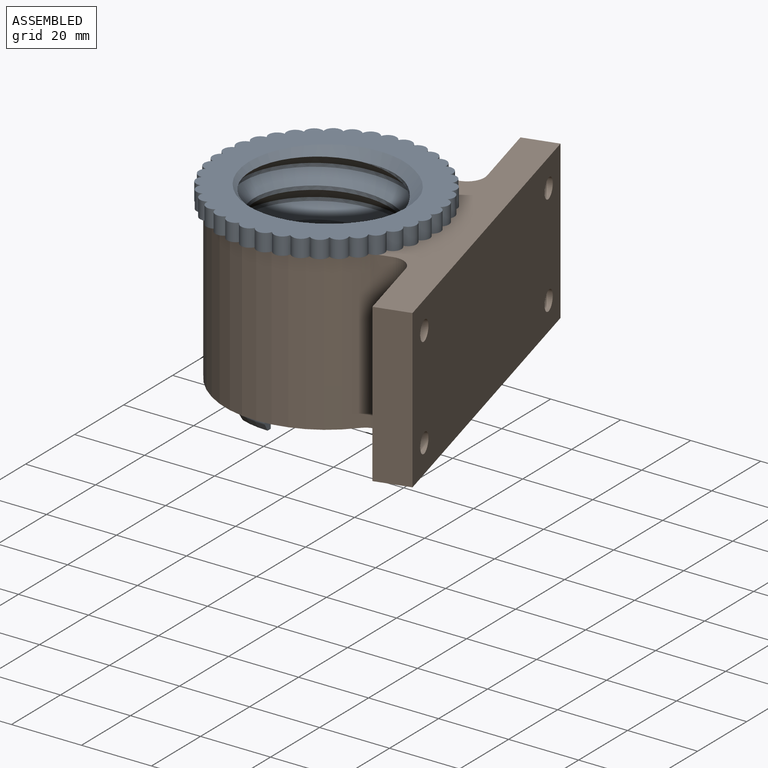
[diagram: assembled view]
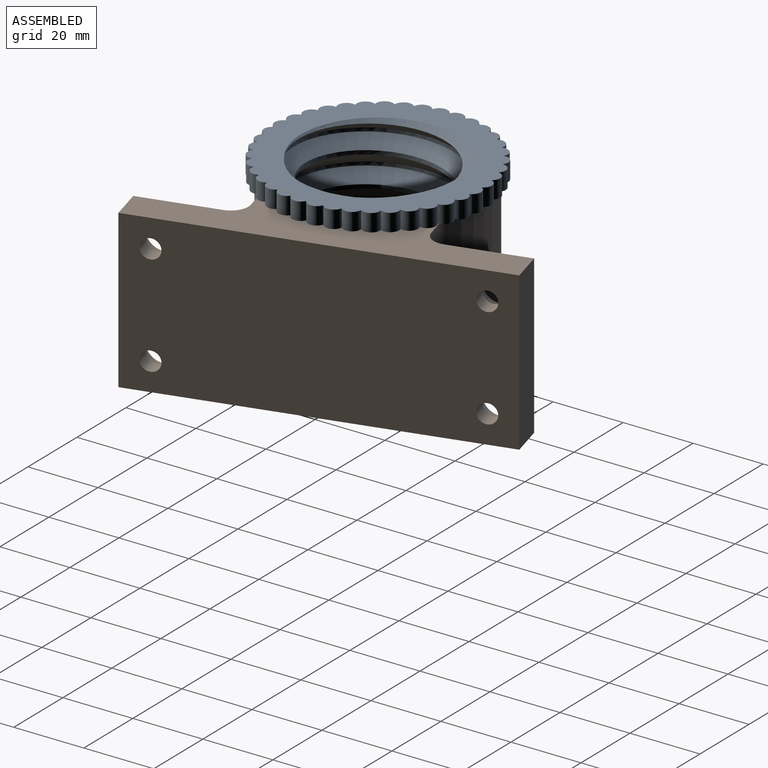
[diagram: assembled view, second angle]
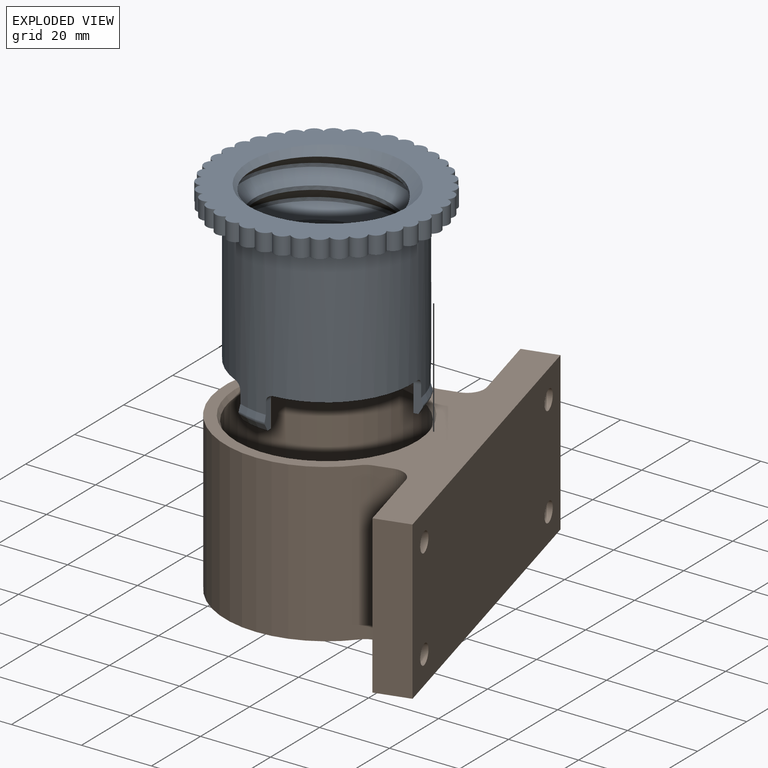
[diagram: exploded view]
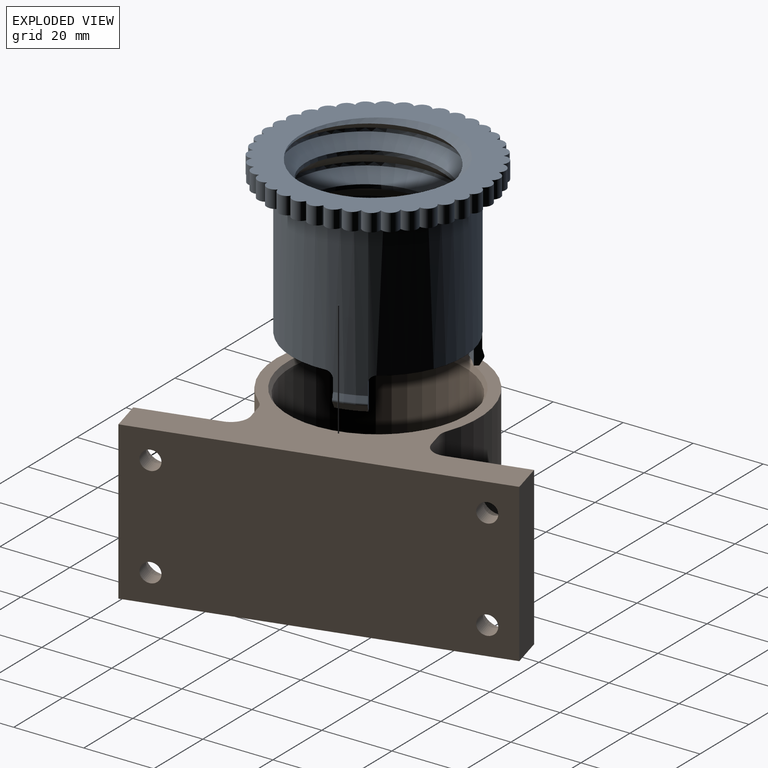
[diagram: exploded view, second angle]
ASSEMBLY  parts=2 mates=2
PART A: 76 faces, bbox 62.3x62.3x59 mm
  f0: cone r=24.97mm half-angle=15deg, axis (0,0,-1), area 15.5mm2, adj f1,f5,f6,f7
  f1: cylinder r=24.5mm len=49mm, axis (0,0,1), area 6305.5mm2, adj f0,f6,f7,f8,f10,f56,f61,f62
  f2: cylinder r=22.5mm len=10.15mm, axis (0,0,1), area 79.7mm2, adj f3,f6,f7,f8,f70,f71
  f3: plane 7.6x5.13mm, normal (0,0,-1), area 10.5mm2, adj f2,f4,f6,f7
  f4: cone r=23.8mm half-angle=30deg, axis (0,0,1), area 18.1mm2, adj f3,f5,f6,f7
  f5: torus R=24mm, axis (0,0,1), area 6.8mm2, adj f0,f4,f6,f7
  f6: plane 7.64x1.92mm, normal (0.77,-0.64,0), area 15.7mm2, adj f0,f1,f2,f3,f4,f5,f70
  f7: plane 7.64x2.35mm, normal (-0.94,0.34,0), area 15.7mm2, adj f0,f1,f2,f3,f4,f5,f71
  f8: plane 49.13x48.33mm, normal (0,0,-1), area 404.2mm2, adj f1,f2,f9,f13,f14,f15,f57,f64
  f9: cylinder r=19.5mm len=42.5mm, axis (0,0,1), area 627.2mm2, adj f8,f12,f13,f15
  f10: plane 62x62mm, normal (0,0,-1), area 1050.9mm2, adj f1,f16,f17,f18,f19,f20,f21,f22
  f11: plane 62.27x62.27mm, normal (0,0,1), area 1392mm2, adj f12,f13,f14,f15,f16,f17,f18,f19
  f12: cone r=19.5mm half-angle=45deg, axis (0,0,1), area 192.6mm2, adj f9,f11,f13,f15
  f13: bspline ~52.99x45.95mm, area 3138.5mm2, adj f8,f9,f11,f12,f14
  f14: bspline ~48.3x46mm, area 731mm2, adj f8,f11,f13,f15
  f15: bspline ~50.79x46mm, area 3131.8mm2, adj f8,f9,f11,f12,f14
  f16: cylinder r=2.48mm len=5mm, axis (0,0,1), area 29.9mm2, adj f10,f11,f17,f55
  f17: cylinder r=2.48mm len=5mm, axis (0,0,1), area 29.9mm2, adj f10,f11,f16,f18
  f18: cylinder r=2.48mm len=5mm, axis (0,0,1), area 29.9mm2, adj f10,f11,f17,f19
  f19: cylinder r=2.48mm len=5mm, axis (0,0,1), area 29.9mm2, adj f10,f11,f18,f20
  f20: cylinder r=2.48mm len=5mm, axis (0,0,1), area 29.9mm2, adj f10,f11,f19,f21
  f21: cylinder r=2.48mm len=5mm, axis (0,0,1), area 29.9mm2, adj f10,f11,f20,f22
  f22: cylinder r=2.48mm len=5mm, axis (0,0,1), area 29.9mm2, adj f10,f11,f21,f23
  f23: cylinder r=2.48mm len=5mm, axis (0,0,1), area 29.9mm2, adj f10,f11,f22,f24
  f24: cylinder r=2.48mm len=5mm, axis (0,0,1), area 29.9mm2, adj f10,f11,f23,f25
  f25: cylinder r=2.48mm len=5mm, axis (0,0,1), area 29.9mm2, adj f10,f11,f24,f26
  f26: cylinder r=2.48mm len=5mm, axis (0,0,1), area 29.9mm2, adj f10,f11,f25,f27
  f27: cylinder r=2.48mm len=5mm, axis (0,0,1), area 29.9mm2, adj f10,f11,f26,f28
  f28: cylinder r=2.48mm len=5mm, axis (0,0,1), area 29.9mm2, adj f10,f11,f27,f29
  f29: cylinder r=2.48mm len=5mm, axis (0,0,1), area 29.9mm2, adj f10,f11,f28,f30
  f30: cylinder r=2.48mm len=5mm, axis (0,0,1), area 29.9mm2, adj f10,f11,f29,f31
  f31: cylinder r=2.48mm len=5mm, axis (0,0,1), area 29.9mm2, adj f10,f11,f30,f32
  f32: cylinder r=2.48mm len=5mm, axis (0,0,1), area 29.9mm2, adj f10,f11,f31,f33
  f33: cylinder r=2.48mm len=5mm, axis (0,0,1), area 29.9mm2, adj f10,f11,f32,f34
  f34: cylinder r=2.48mm len=5mm, axis (0,0,1), area 29.9mm2, adj f10,f11,f33,f35
  f35: cylinder r=2.48mm len=5mm, axis (0,0,1), area 29.9mm2, adj f10,f11,f34,f36
  f36: cylinder r=2.48mm len=5mm, axis (0,0,1), area 29.9mm2, adj f10,f11,f35,f37
  f37: cylinder r=2.48mm len=5mm, axis (0,0,1), area 29.9mm2, adj f10,f11,f36,f38
  f38: cylinder r=2.48mm len=5mm, axis (0,0,1), area 29.9mm2, adj f10,f11,f37,f39
  f39: cylinder r=2.48mm len=5mm, axis (0,0,1), area 29.9mm2, adj f10,f11,f38,f40
  f40: cylinder r=2.48mm len=5mm, axis (0,0,1), area 29.9mm2, adj f10,f11,f39,f41
  f41: cylinder r=2.48mm len=5mm, axis (0,0,1), area 29.9mm2, adj f10,f11,f40,f42
  f42: cylinder r=2.48mm len=5mm, axis (0,0,1), area 29.9mm2, adj f10,f11,f41,f43
  f43: cylinder r=2.48mm len=5mm, axis (0,0,1), area 29.9mm2, adj f10,f11,f42,f44
  f44: cylinder r=2.48mm len=5mm, axis (0,0,1), area 29.9mm2, adj f10,f11,f43,f45
  f45: cylinder r=2.48mm len=5mm, axis (0,0,1), area 29.9mm2, adj f10,f11,f44,f46
  f46: cylinder r=2.48mm len=5mm, axis (0,0,1), area 29.9mm2, adj f10,f11,f45,f47
  f47: cylinder r=2.48mm len=5mm, axis (0,0,1), area 29.9mm2, adj f10,f11,f46,f48
  f48: cylinder r=2.48mm len=5mm, axis (0,0,1), area 29.9mm2, adj f10,f11,f47,f49
  f49: cylinder r=2.48mm len=5mm, axis (0,0,1), area 29.9mm2, adj f10,f11,f48,f50
  f50: cylinder r=2.48mm len=5mm, axis (0,0,1), area 29.9mm2, adj f10,f11,f49,f51
  f51: cylinder r=2.48mm len=5mm, axis (0,0,1), area 29.9mm2, adj f10,f11,f50,f52
  f52: cylinder r=2.48mm len=5mm, axis (0,0,1), area 29.9mm2, adj f10,f11,f51,f53
  f53: cylinder r=2.48mm len=5mm, axis (0,0,1), area 29.9mm2, adj f10,f11,f52,f54
  f54: cylinder r=2.48mm len=5mm, axis (0,0,1), area 29.9mm2, adj f10,f11,f53,f55
  f55: cylinder r=2.48mm len=5mm, axis (0,0,1), area 29.9mm2, adj f10,f11,f16,f54
  f56: cone r=24.97mm half-angle=15deg, axis (0,0,-1), area 15.5mm2, adj f1,f60,f61,f62
  f57: cylinder r=22.5mm len=10.15mm, axis (0,0,1), area 79.7mm2, adj f8,f58,f61,f62,f74,f75
  f58: plane 7.6x5.13mm, normal (0,0,-1), area 10.5mm2, adj f57,f59,f61,f62
  f59: cone r=23.8mm half-angle=30deg, axis (0,0,1), area 18.1mm2, adj f58,f60,f61,f62
  f60: torus R=24mm, axis (0,0,1), area 6.8mm2, adj f56,f59,f61,f62
  f61: plane 7.64x2.35mm, normal (-0.94,-0.34,0), area 15.7mm2, adj f1,f56,f57,f58,f59,f60,f75
  f62: plane 7.64x1.92mm, normal (0.77,0.64,0), area 15.7mm2, adj f1,f56,f57,f58,f59,f60,f74
  f63: cone r=24.97mm half-angle=15deg, axis (0,0,-1), area 15.5mm2, adj f1,f67,f68,f69
  f64: cylinder r=22.5mm len=11.72mm, axis (0,0,1), area 79.7mm2, adj f8,f65,f68,f69,f72,f73
  f65: plane 8.27x1.64mm, normal (0,0,-1), area 10.5mm2, adj f64,f66,f68,f69
  f66: cone r=23.8mm half-angle=30deg, axis (0,0,1), area 18.1mm2, adj f65,f67,f68,f69
  f67: torus R=24mm, axis (0,0,1), area 6.8mm2, adj f63,f66,f68,f69
  f68: plane 7.64x2.46mm, normal (0.17,0.98,0), area 15.7mm2, adj f1,f63,f64,f65,f66,f67,f72
  f69: plane 7.64x2.46mm, normal (0.17,-0.98,0), area 15.7mm2, adj f1,f63,f64,f65,f66,f67,f73
  f70: cylinder r=2mm len=2.89mm, axis (0.64,0.77,0), area 6.3mm2, adj f1,f2,f6,f8
  f71: cylinder r=2mm len=2.65mm, axis (-0.34,-0.94,0), area 6.3mm2, adj f1,f2,f7,f8
  f72: cylinder r=2mm len=2.4mm, axis (-0.98,0.17,0), area 6.3mm2, adj f1,f8,f64,f68
  f73: cylinder r=2mm len=2.4mm, axis (0.98,0.17,0), area 6.3mm2, adj f1,f8,f64,f69
  f74: cylinder r=2mm len=2.89mm, axis (-0.64,0.77,0), area 6.3mm2, adj f1,f8,f57,f62
  f75: cylinder r=2mm len=2.65mm, axis (0.34,-0.94,0), area 6.3mm2, adj f1,f8,f57,f61
PART B: 28 faces, bbox 100x68.8x45 mm
  f0: plane 45x5.08mm, normal (-1,0,0), area 228.5mm2, adj f9,f10,f23,f26
  f1: plane 45x22.5mm, normal (0,1,0), area 855.4mm2, adj f2,f9,f10,f19,f22,f23
  f2: plane 45x10mm, normal (-1,0,0), area 450mm2, adj f1,f3,f9,f10
  f3: plane 100x45mm, normal (0,-1,0), area 4405mm2, adj f2,f4,f9,f10,f11,f14,f17,f20
  f4: plane 45x10mm, normal (1,0,0), area 450mm2, adj f3,f5,f9,f10
  f5: plane 45x22.5mm, normal (0,1,0), area 855.4mm2, adj f4,f9,f10,f13,f16,f24
  f6: plane 45x5.08mm, normal (1,0,0), area 228.5mm2, adj f9,f10,f24,f25
  f7: cylinder r=24.9mm len=49.8mm, axis (0,0,-1), area 6823.5mm2, adj f10,f27
  f8: cylinder r=28.9mm len=57.8mm, axis (0,0,-1), area 5710.2mm2, adj f9,f10,f25,f26
  f9: plane 100x68.8mm, normal (0,0,1), area 1752.3mm2, adj f0,f1,f2,f3,f4,f5,f6,f8
  f10: plane 100x68.8mm, normal (0,0,-1), area 1879.5mm2, adj f0,f1,f2,f3,f4,f5,f6,f7
  f11: cylinder r=2.75mm len=5.5mm, axis (0,1,0), area 79.5mm2, adj f3,f12
  f12: plane 10x10mm, normal (0,1,0), area 54.8mm2, adj f11,f13
  f13: cylinder r=5mm len=10mm, axis (0,1,0), area 169.6mm2, adj f5,f12
  f14: cylinder r=2.75mm len=5.5mm, axis (0,1,0), area 79.5mm2, adj f3,f15
  f15: plane 10x10mm, normal (0,1,0), area 54.8mm2, adj f14,f16
  f16: cylinder r=5mm len=10mm, axis (0,1,0), area 169.6mm2, adj f5,f15
  f17: cylinder r=2.75mm len=5.5mm, axis (0,1,0), area 79.5mm2, adj f3,f18
  f18: plane 10x10mm, normal (0,1,0), area 54.8mm2, adj f17,f19
  f19: cylinder r=5mm len=10mm, axis (0,1,0), area 169.6mm2, adj f1,f18
  f20: cylinder r=2.75mm len=5.5mm, axis (0,1,0), area 79.5mm2, adj f3,f21
  f21: plane 10x10mm, normal (0,1,0), area 54.8mm2, adj f20,f22
  f22: cylinder r=5mm len=10mm, axis (0,1,0), area 169.6mm2, adj f1,f21
  f23: cylinder r=5mm len=45mm, axis (0,0,1), area 353.4mm2, adj f0,f1,f9,f10
  f24: cylinder r=5mm len=45mm, axis (0,0,-1), area 353.4mm2, adj f5,f6,f9,f10
  f25: cylinder r=5mm len=45mm, axis (0,0,-1), area 140.5mm2, adj f6,f8,f9,f10
  f26: cylinder r=5mm len=45mm, axis (0,0,-1), area 140.5mm2, adj f0,f8,f9,f10
  f27: cone r=24.9mm half-angle=30deg, axis (0,0,1), area 254.3mm2, adj f7,f9
PLACE A rot(axis=(0,0,-1),40.5deg) t=(0,0,-10)mm
PLACE B rot(axis=(0,0,1),104.7deg) t=(0,0,0)mm
MATE cylindrical A.f4 <-> B.f7  axis (0,0,1) through (0,0,22.35)mm
MATE planar A.f23 <-> B.f9  axis (0,0,-1) through (-10.75,-26.42,45)mm
